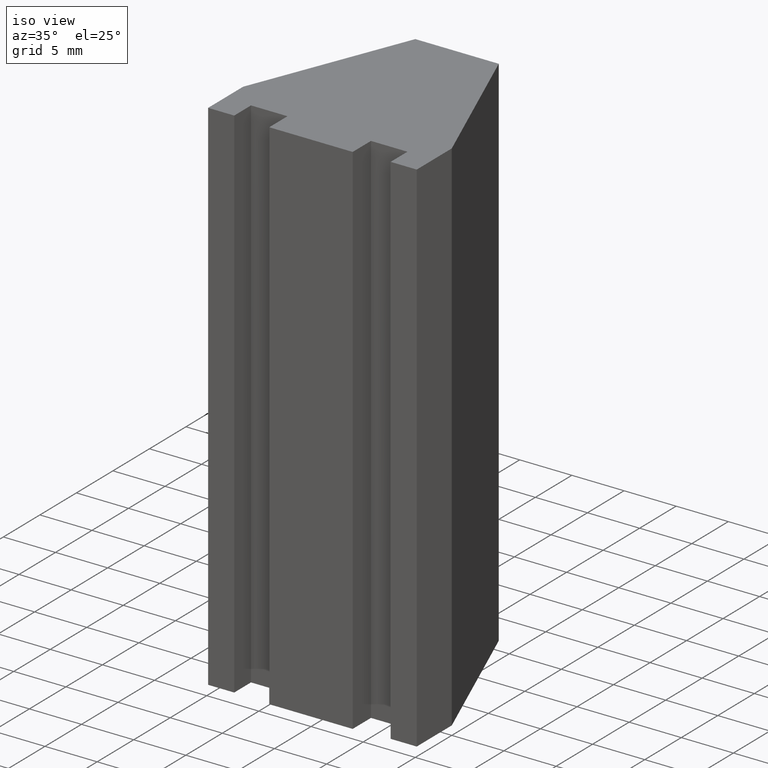
[diagram: clean part render]
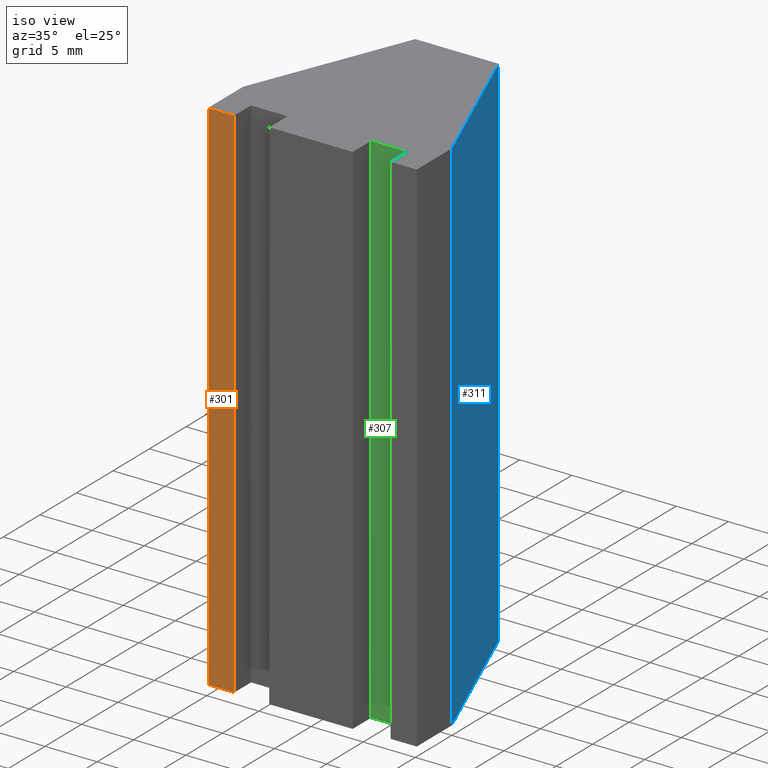
[diagram: same view with three faces highlighted in distinct colors, each labeled with its STEP entity id]
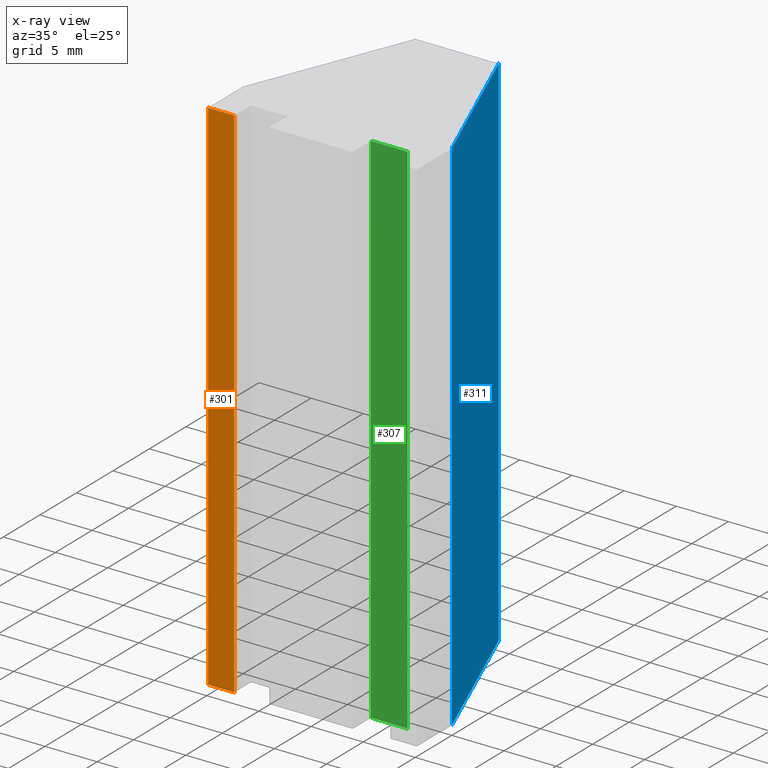
[diagram: x-ray of the same camera — body ghosted, the three highlighted faces saturated]
A machine part, iso view with three faces highlighted in distinct colors.
The next image is the same camera in x-ray (body ghosted, the three faces saturated) — at least one of them is partly hidden behind the body in this view.
Their STEP definitions:

[orange] entity #301 — the highlighted planar face has unit normal (0, -1, 0).
#15=FACE_OUTER_BOUND('',#31,.T.);
#31=EDGE_LOOP('',(#201,#202,#203,#204));
#47=LINE('',#433,#89);
#48=LINE('',#435,#90);
#49=LINE('',#437,#91);
#50=LINE('',#438,#92);
#89=VECTOR('',#357,10.);
#90=VECTOR('',#358,10.);
#91=VECTOR('',#359,10.);
#92=VECTOR('',#360,10.);
#131=VERTEX_POINT('',#431);
#132=VERTEX_POINT('',#432);
#133=VERTEX_POINT('',#434);
#134=VERTEX_POINT('',#436);
#159=EDGE_CURVE('',#131,#132,#47,.T.);
#160=EDGE_CURVE('',#131,#133,#48,.T.);
#161=EDGE_CURVE('',#134,#133,#49,.T.);
#162=EDGE_CURVE('',#132,#134,#50,.T.);
#201=ORIENTED_EDGE('',*,*,#159,.F.);
#202=ORIENTED_EDGE('',*,*,#160,.T.);
#203=ORIENTED_EDGE('',*,*,#161,.F.);
#204=ORIENTED_EDGE('',*,*,#162,.F.);
#285=PLANE('',#337);
#301=ADVANCED_FACE('',(#15),#285,.T.);
#337=AXIS2_PLACEMENT_3D('',#430,#355,#356);
#355=DIRECTION('center_axis',(4.44089209850063E-16,-1.,0.));
#356=DIRECTION('ref_axis',(-1.,-4.44089209850063E-16,0.));
#357=DIRECTION('',(1.,4.44089209850063E-16,0.));
#358=DIRECTION('',(0.,0.,-1.));
#359=DIRECTION('',(-1.,-4.44089209850063E-16,0.));
#360=DIRECTION('',(0.,0.,-1.));
#430=CARTESIAN_POINT('Origin',(-7.49999999999998,0.200000000000001,0.));
#431=CARTESIAN_POINT('',(-9.99999999999998,0.2,0.));
#432=CARTESIAN_POINT('',(-7.49999999999998,0.200000000000001,0.));
#433=CARTESIAN_POINT('',(-9.99999999999998,0.2,0.));
#434=CARTESIAN_POINT('',(-9.99999999999998,0.2,-50.));
#435=CARTESIAN_POINT('',(-9.99999999999998,0.2,0.));
#436=CARTESIAN_POINT('',(-7.49999999999998,0.200000000000001,-50.));
#437=CARTESIAN_POINT('',(-9.99999999999998,0.2,-50.));
#438=CARTESIAN_POINT('',(-7.49999999999998,0.200000000000001,0.));

[blue] entity #311 — the highlighted planar face has unit normal (0.9285, 0.3714, 0).
#25=FACE_OUTER_BOUND('',#41,.T.);
#41=EDGE_LOOP('',(#241,#242,#243,#244));
#77=LINE('',#492,#119);
#78=LINE('',#495,#120);
#79=LINE('',#497,#121);
#80=LINE('',#498,#122);
#119=VECTOR('',#405,10.);
#120=VECTOR('',#408,10.);
#121=VECTOR('',#409,10.);
#122=VECTOR('',#410,10.);
#151=VERTEX_POINT('',#488);
#152=VERTEX_POINT('',#490);
#153=VERTEX_POINT('',#494);
#154=VERTEX_POINT('',#496);
#189=EDGE_CURVE('',#151,#152,#77,.T.);
#190=EDGE_CURVE('',#151,#153,#78,.T.);
#191=EDGE_CURVE('',#154,#152,#79,.T.);
#192=EDGE_CURVE('',#153,#154,#80,.T.);
#241=ORIENTED_EDGE('',*,*,#190,.F.);
#242=ORIENTED_EDGE('',*,*,#189,.T.);
#243=ORIENTED_EDGE('',*,*,#191,.F.);
#244=ORIENTED_EDGE('',*,*,#192,.F.);
#295=PLANE('',#347);
#311=ADVANCED_FACE('',(#25),#295,.T.);
#347=AXIS2_PLACEMENT_3D('',#493,#406,#407);
#405=DIRECTION('',(0.,0.,-1.));
#406=DIRECTION('center_axis',(0.928476690885259,0.371390676354104,0.));
#407=DIRECTION('ref_axis',(0.371390676354104,-0.928476690885259,0.));
#408=DIRECTION('',(-0.371390676354104,0.928476690885259,0.));
#409=DIRECTION('',(0.371390676354104,-0.928476690885259,0.));
#410=DIRECTION('',(0.,0.,-1.));
#488=CARTESIAN_POINT('',(10.,5.,0.));
#490=CARTESIAN_POINT('',(10.,5.,-50.));
#492=CARTESIAN_POINT('',(10.,5.,0.));
#493=CARTESIAN_POINT('Origin',(4.00000000000001,20.,0.));
#494=CARTESIAN_POINT('',(4.00000000000002,20.,0.));
#495=CARTESIAN_POINT('',(10.,5.,0.));
#496=CARTESIAN_POINT('',(4.00000000000002,20.,-50.));
#497=CARTESIAN_POINT('',(10.,5.,-50.));
#498=CARTESIAN_POINT('',(4.00000000000002,20.,0.));

[green] entity #307 — the highlighted planar face has unit normal (0, -1, 0).
#21=FACE_OUTER_BOUND('',#37,.T.);
#37=EDGE_LOOP('',(#225,#226,#227,#228));
#65=LINE('',#468,#107);
#66=LINE('',#471,#108);
#67=LINE('',#473,#109);
#68=LINE('',#474,#110);
#107=VECTOR('',#385,10.);
#108=VECTOR('',#388,10.);
#109=VECTOR('',#389,10.);
#110=VECTOR('',#390,10.);
#143=VERTEX_POINT('',#464);
#144=VERTEX_POINT('',#466);
#145=VERTEX_POINT('',#470);
#146=VERTEX_POINT('',#472);
#177=EDGE_CURVE('',#143,#144,#65,.T.);
#178=EDGE_CURVE('',#143,#145,#66,.T.);
#179=EDGE_CURVE('',#146,#144,#67,.T.);
#180=EDGE_CURVE('',#145,#146,#68,.T.);
#225=ORIENTED_EDGE('',*,*,#178,.F.);
#226=ORIENTED_EDGE('',*,*,#177,.T.);
#227=ORIENTED_EDGE('',*,*,#179,.F.);
#228=ORIENTED_EDGE('',*,*,#180,.F.);
#291=PLANE('',#343);
#307=ADVANCED_FACE('',(#21),#291,.T.);
#343=AXIS2_PLACEMENT_3D('',#469,#386,#387);
#385=DIRECTION('',(0.,0.,-1.));
#386=DIRECTION('center_axis',(0.,-1.,0.));
#387=DIRECTION('ref_axis',(-1.,0.,0.));
#388=DIRECTION('',(1.,0.,0.));
#389=DIRECTION('',(-1.,0.,0.));
#390=DIRECTION('',(0.,0.,-1.));
#464=CARTESIAN_POINT('',(4.00000000000003,2.5,0.));
#466=CARTESIAN_POINT('',(4.00000000000003,2.5,-50.));
#468=CARTESIAN_POINT('',(4.00000000000003,2.5,0.));
#469=CARTESIAN_POINT('Origin',(7.50000000000002,2.5,0.));
#470=CARTESIAN_POINT('',(7.50000000000002,2.5,0.));
#471=CARTESIAN_POINT('',(4.00000000000003,2.5,0.));
#472=CARTESIAN_POINT('',(7.50000000000002,2.5,-50.));
#473=CARTESIAN_POINT('',(4.00000000000003,2.5,-50.));
#474=CARTESIAN_POINT('',(7.50000000000002,2.5,0.));